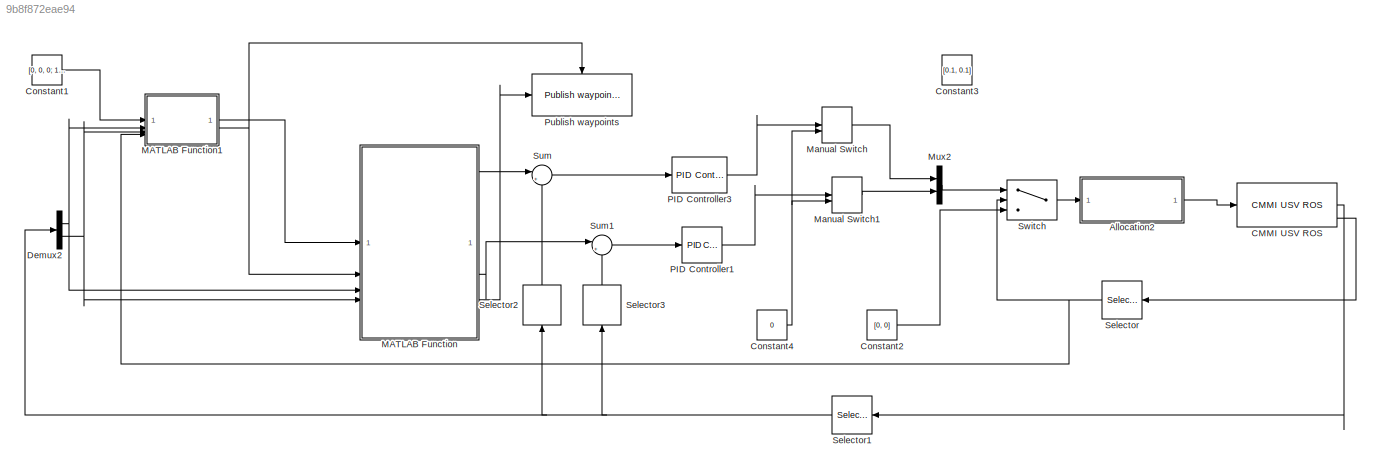
MODEL slx_9b8f872eae94
KIND model
CONFIG AbsTol = auto
CONFIG EnableMultiTasking = off
CONFIG FixedStep = 0.05
CONFIG MaxStep = auto
CONFIG MinStep = auto
CONFIG RelTol = 1e-3
CONFIG SampleTimeConstraint = Unconstrained
CONFIG SolverName = FixedStepAuto
CONFIG StartTime = 0.0
CONFIG StopTime = 100000
WORKSPACE source: mxarray member
WORKSPACE SL_Bus_ROSEnable64bitIntegers = 1
WORKSPACE SL_ROS_VariableLengthArrays_MaxSizes: object (value not decoded)
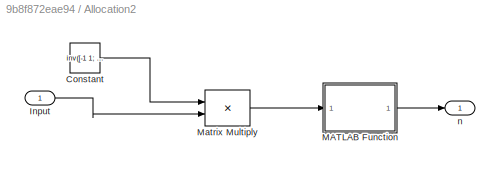
BLOCK [SubSystem] Allocation2
BLOCK [Constant] Allocation2/Constant
  Value = inv([-1 1; 1 1])
BLOCK [Inport] Allocation2/Input
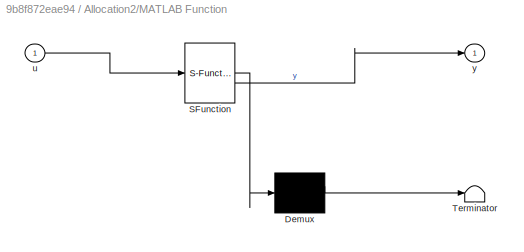
BLOCK [SubSystem] Allocation2/MATLAB Function
  ErrorFcn = Stateflow.Translate.translate
  PermitHierarchicalResolution = ExplicitOnly
  SFBlockType = MATLAB Function
  TreatAsAtomicUnit = on
BLOCK [Demux] Allocation2/MATLAB Function/ Demux 
  Outputs = 1
BLOCK [S-Function] Allocation2/MATLAB Function/ SFunction 
  EnableBusSupport = on
  FunctionName = sf_sfun
  PortCounts = [1 2]
  SFcnIsStateOwnerBlock = off
  SFunctionDeploymentMode = off
  Tag = Stateflow S-Function 4
BLOCK [Terminator] Allocation2/MATLAB Function/ Terminator 
BLOCK [Inport] Allocation2/MATLAB Function/u
BLOCK [Outport] Allocation2/MATLAB Function/y
BLOCK [Product] Allocation2/Matrix Multiply
  Multiplication = Matrix(*)
BLOCK [Outport] Allocation2/n
BLOCK [Reference] CMMI USV ROS  REF=cmmi_lib/CMMI USV ROS  (lib defined in slx_36746e0085bf)
  SourceBlock = cmmi_lib/CMMI USV ROS
  SourceType = SubSystem
BLOCK [Constant] Constant1
  Value = [0, 0, 0; 15, 0, 0; 15 15, 0; 0, 15, 0; 2, 2, 0]
BLOCK [Constant] Constant2
  Value = [0, 0]
BLOCK [Constant] Constant3
  Value = [0.1, 0.1]
BLOCK [Constant] Constant4
  Value = 0
BLOCK [Demux] Demux2
  Outputs = 2
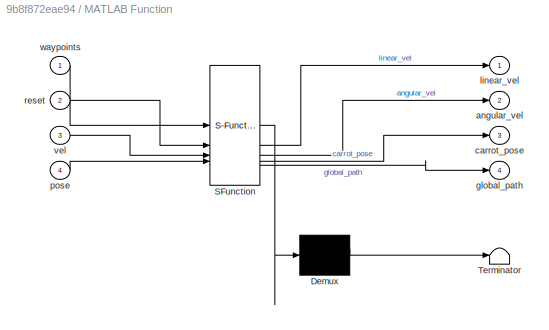
BLOCK [SubSystem] MATLAB Function
  ErrorFcn = Stateflow.Translate.translate
  PermitHierarchicalResolution = ExplicitOnly
  SFBlockType = MATLAB Function
  TreatAsAtomicUnit = on
BLOCK [Demux] MATLAB Function/ Demux 
  Outputs = 1
BLOCK [S-Function] MATLAB Function/ SFunction 
  EnableBusSupport = on
  FunctionName = sf_sfun
  Parameters = params
  PortCounts = [4 5]
  SFcnIsStateOwnerBlock = off
  SFunctionDeploymentMode = off
  Tag = Stateflow S-Function 2
BLOCK [Terminator] MATLAB Function/ Terminator 
BLOCK [Outport] MATLAB Function/angular_vel
  Port = 2
BLOCK [Outport] MATLAB Function/carrot_pose
  Port = 3
BLOCK [Outport] MATLAB Function/global_path
  Port = 4
BLOCK [Outport] MATLAB Function/linear_vel
BLOCK [Inport] MATLAB Function/pose
  Port = 4
BLOCK [Inport] MATLAB Function/reset
  Port = 2
BLOCK [Inport] MATLAB Function/vel
  Port = 3
BLOCK [Inport] MATLAB Function/waypoints
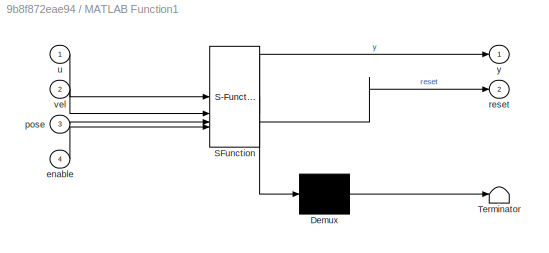
BLOCK [SubSystem] MATLAB Function1
  ErrorFcn = Stateflow.Translate.translate
  PermitHierarchicalResolution = ExplicitOnly
  SFBlockType = MATLAB Function
  TreatAsAtomicUnit = on
BLOCK [Demux] MATLAB Function1/ Demux 
  Outputs = 1
BLOCK [S-Function] MATLAB Function1/ SFunction 
  EnableBusSupport = on
  FunctionName = sf_sfun
  PortCounts = [4 3]
  SFcnIsStateOwnerBlock = off
  SFunctionDeploymentMode = off
  Tag = Stateflow S-Function 1
BLOCK [Terminator] MATLAB Function1/ Terminator 
BLOCK [Inport] MATLAB Function1/enable
  Port = 4
BLOCK [Inport] MATLAB Function1/pose
  Port = 3
BLOCK [Outport] MATLAB Function1/reset
  Port = 2
BLOCK [Inport] MATLAB Function1/u
BLOCK [Inport] MATLAB Function1/vel
  Port = 2
BLOCK [Outport] MATLAB Function1/y
BLOCK [ManualSwitch] Manual Switch
BLOCK [ManualSwitch] Manual Switch1
BLOCK [Mux] Mux2
  DisplayOption = bar
  Inputs = 2
BLOCK [Reference] PID Controller1  REF=slpidlib/PID Controller
  LibrarySourceBlock = simulink/Continuous/PID Controller
  SourceBlock = slpidlib/PID Controller
  SourceType = PID 1dof
BLOCK [Reference] PID Controller3  REF=slpidlib/PID Controller
  LibrarySourceBlock = simulink/Continuous/PID Controller
  SourceBlock = slpidlib/PID Controller
  SourceType = PID 1dof
BLOCK [Reference] Publish waypoints  REF=cmmi_lib/Publish waypoints  (lib defined in slx_36746e0085bf)
  SourceBlock = cmmi_lib/Publish waypoints
  SourceType = SubSystem
BLOCK [Selector] Selector
  IndexOptions = Index vector (dialog)
  Indices = [1]
  InputPortWidth = 8
  NameLocation = top
  OutputSizes = 1
BLOCK [Selector] Selector1
  IndexOptions = Index vector (dialog)
  Indices = [1 2 6 7 8 12]
  InputPortWidth = 12
  NameLocation = top
  OutputSizes = 1
BLOCK [Selector] Selector2
  IndexOptions = Index vector (dialog)
  Indices = [1]
  InputPortWidth = 6
  NameLocation = right
  OutputSizes = 1
BLOCK [Selector] Selector3
  IndexOptions = Index vector (dialog)
  Indices = [3]
  InputPortWidth = 6
  NameLocation = right
  OutputSizes = 1
BLOCK [Sum] Sum
  Inputs = |+-
BLOCK [Sum] Sum1
  Inputs = |+-
BLOCK [Switch] Switch
  Criteria = u2 > Threshold
  InputSameDT = off
  SaturateOnIntegerOverflow = off
LINE Allocation2/Constant:1 -> Allocation2/Matrix Multiply:1
LINE Allocation2/Input:1 -> Allocation2/Matrix Multiply:2
LINE Allocation2/MATLAB Function:1 -> Allocation2/n:1
LINE Allocation2/Matrix Multiply:1 -> Allocation2/MATLAB Function:1
LINE Allocation2:1 -> CMMI USV ROS:1
LINE CMMI USV ROS:1 -> Selector1:1
LINE CMMI USV ROS:4 -> Selector:1
LINE Constant1:1 -> MATLAB Function1:1
LINE Constant2:1 -> Switch:3
NET Constant4:1 -> Manual Switch1:2, Manual Switch:2
NET Demux2:1 -> MATLAB Function1:2, MATLAB Function:3
NET Demux2:2 -> MATLAB Function1:3, MATLAB Function:4
LINE MATLAB Function1:1 -> MATLAB Function:1
NET MATLAB Function1:2 -> MATLAB Function:2, Publish waypoints:enable
LINE MATLAB Function:1 -> Sum:1
LINE MATLAB Function:2 -> Sum1:1
LINE MATLAB Function:4 -> Publish waypoints:1
LINE Manual Switch1:1 -> Mux2:2
LINE Manual Switch:1 -> Mux2:1
LINE Mux2:1 -> Switch:1
LINE PID Controller1:1 -> Manual Switch1:1
LINE PID Controller3:1 -> Manual Switch:1
NET Selector1:1 -> Demux2:1, Selector2:1, Selector3:1
LINE Selector2:1 -> Sum:2
LINE Selector3:1 -> Sum1:2
NET Selector:1 -> MATLAB Function1:4, Switch:2
LINE Sum1:1 -> PID Controller1:1
LINE Sum:1 -> PID Controller3:1
LINE Switch:1 -> Allocation2:1
note: NET lines group one-source signal fan-out (src -> all destinations, sorted); 1:1 wires keep LINE
CHART MATLAB Function1 states=1 transitions=1
  STATE_LABEL 'eML_blk_kernel()'
  STATE_LABEL "SCRIPT:\nfunction [y, reset] = fcn(u, vel, pose, enable)\npersistent en waypoints\n\n\nif isempty(en)\n    en = 0;\n    waypoints = u;\nend\n\nreset = 0;\nif en == 0 && enable == 1\n    en = 1;\n    reset = 1;\n    waypoints = u + repmat(pose', size(waypoints, 1), 1);\nend\n\nif en == 1 && enable == 0\n    en = 0;\n    reset = -1;\n    waypoints = u;\nend\ny = waypoints;\n"
CHART MATLAB Function states=1 transitions=1
  STATE_LABEL 'eML_blk_kernel()'
  STATE_LABEL 'SCRIPT:\nfunction [linear_vel, angular_vel, carrot_pose, global_path] = fcn(waypoints, reset, vel, pose, params)\n\n    persistent global_path_p idx ok\n    num_divs = 100;    \n    waypoints_path = 0;\n\n    if isempty(global_path_p) || reset == -1\n        global_path_p = zeros((height(waypoints)-1) * num_divs+1, 3);\n        idx = 0;\n        ok = 0;\n    end\n\n    if reset == 1\n\n        if waypoints_path\n...<+1403ch>'
CHART Allocation2/MATLAB Function states=1 transitions=1
  STATE_LABEL 'eML_blk_kernel()'
  STATE_LABEL 'SCRIPT:\nfunction y = fcn(u)\n\ny = t200_inv(u);'
CHART  states=0 transitions=0
CHART  states=0 transitions=0
CHART  states=0 transitions=0
